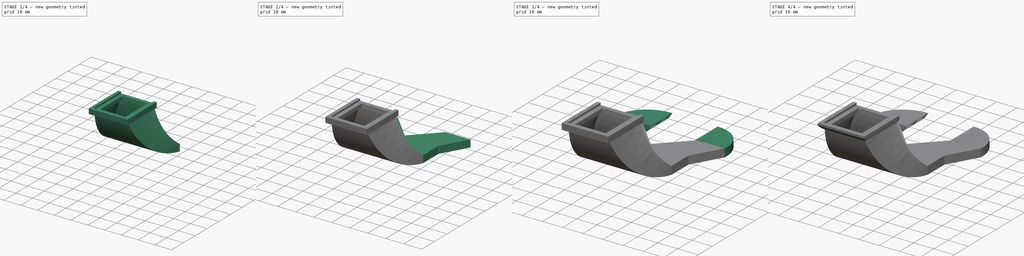
[diagram: build sequence overview — one tinted view per stage of 4, left to right]
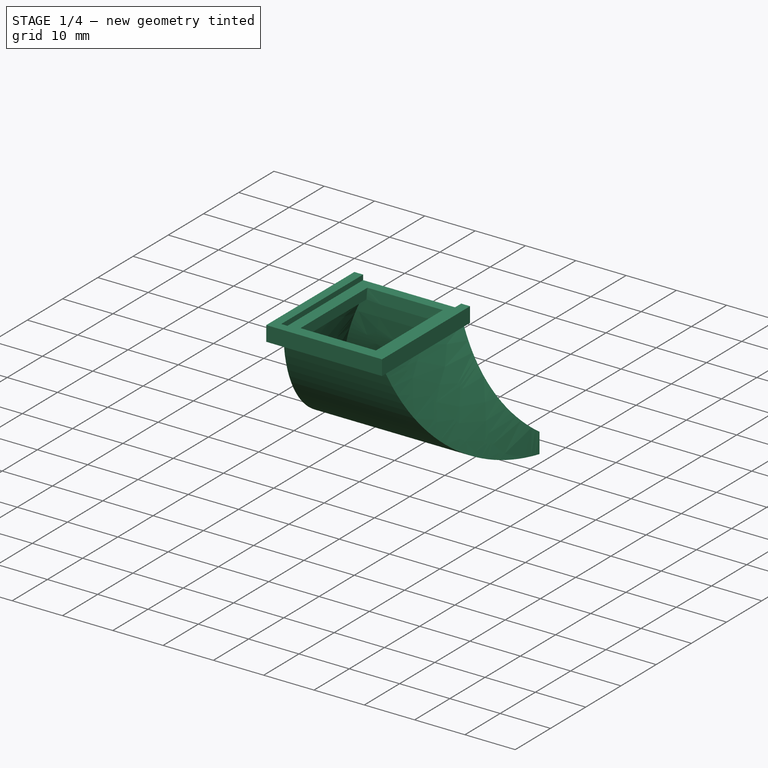
[diagram: stage 1 of 4 — iso view after this stage's code; geometry added in this stage tinted green]
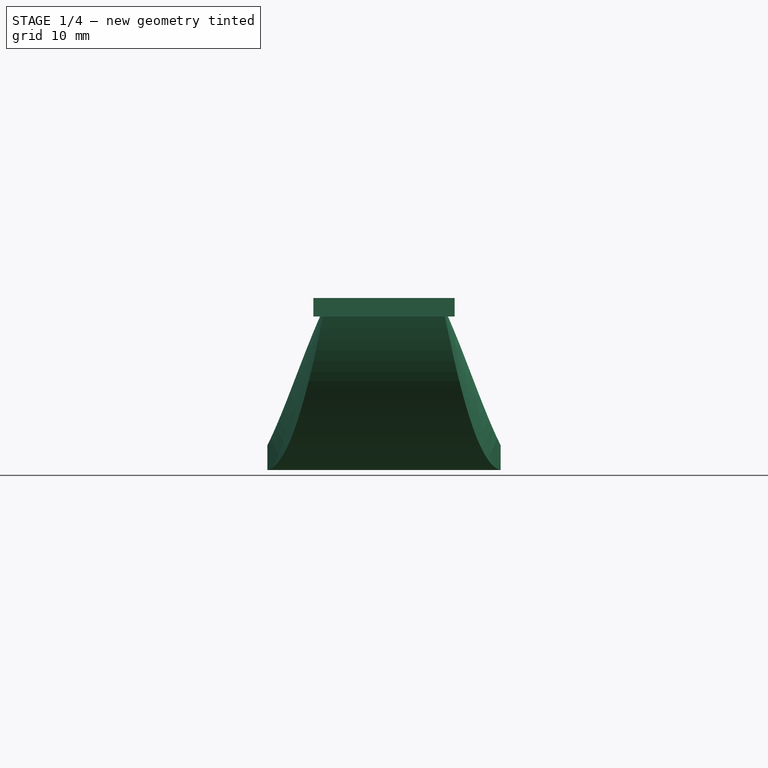
[diagram: stage 1 of 4 — front view after this stage's code; geometry added in this stage tinted green]
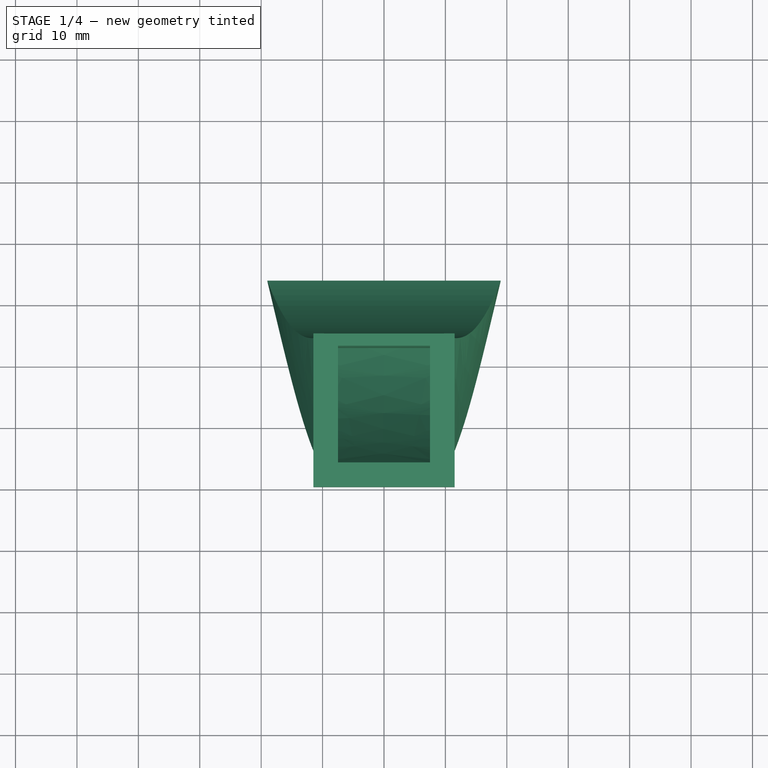
[diagram: stage 1 of 4 — top view after this stage's code; geometry added in this stage tinted green]
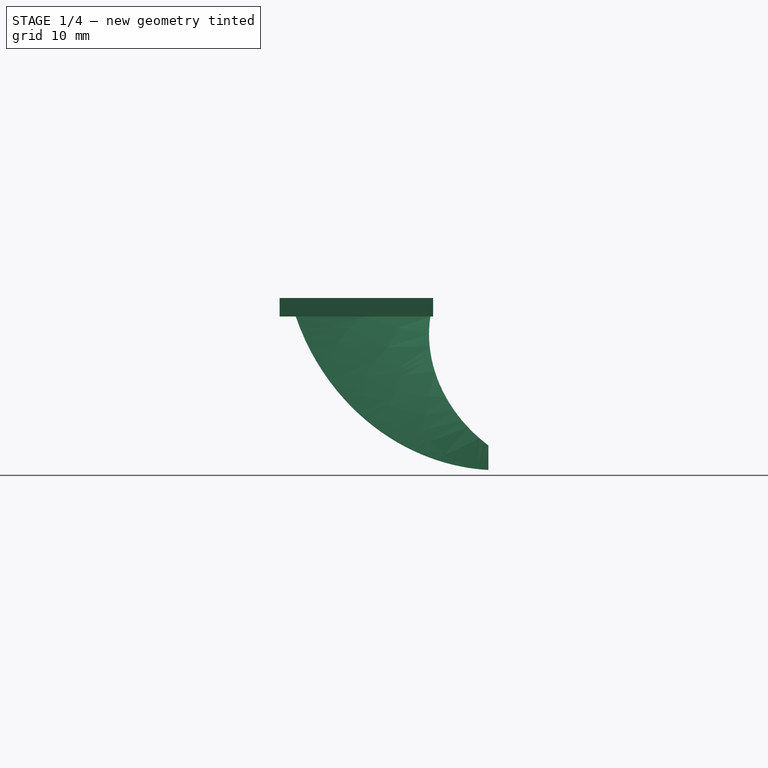
[diagram: stage 1 of 4 — right view after this stage's code; geometry added in this stage tinted green]
FCSTD DOCUMENT  (FreeCAD 0.18R15441 (Git))
Label: BackTurbinePipe_TwoSides
License: All rights reserved
LicenseURL: http://en.wikipedia.org/wiki/All_rights_reserved
objects: Sketcher::SketchObject×19, PartDesign::Plane×8, PartDesign::AdditivePipe×6, PartDesign::Pad×2, PartDesign::Chamfer×2, PartDesign::Pocket×1, PartDesign::Body×1, Part::FeaturePython×1, App::Part×1
note: 49 computed .brp shape members not serialized (recipe doc carries the construction recipe); baked Part::Feature solids carry a one-line shape summary decoded from their .brp

FEATURE [Sketcher::SketchObject] Sketch  label="CasingBaseSketch"
  MapMode = 5
  Support = -> [XY_Plane001]
  sketch-geometry (8):
    g0: LineSegment StartX=-11.5 StartY=-15 StartZ=0 EndX=11.5 EndY=-15 EndZ=0
    g1: LineSegment StartX=11.5 StartY=-15 StartZ=0 EndX=11.5 EndY=-40 EndZ=0
    g2: LineSegment StartX=11.5 StartY=-40 StartZ=0 EndX=-11.5 EndY=-40 EndZ=0
    g3: LineSegment StartX=-11.5 StartY=-40 StartZ=0 EndX=-11.5 EndY=-15 EndZ=0
    g4: LineSegment StartX=-7.5 StartY=-17 StartZ=0 EndX=7.5 EndY=-17 EndZ=0
    g5: LineSegment StartX=7.5 StartY=-17 StartZ=0 EndX=7.5 EndY=-36 EndZ=0
    g6: LineSegment StartX=7.5 StartY=-36 StartZ=0 EndX=-7.5 EndY=-36 EndZ=0
    g7: LineSegment StartX=-7.5 StartY=-36 StartZ=0 EndX=-7.5 EndY=-17 EndZ=0
  constraints (23):
    c: Coincident(g0,g1)
    c: Coincident(g1,g2)
    c: Coincident(g2,g3)
    c: Coincident(g3,g0)
    c: Horizontal(g2)
    c: Vertical(g1)
    c: Vertical(g3)
    c: Coincident(g4,g5)
    c: Coincident(g5,g6)
    c: Coincident(g6,g7)
    c: Coincident(g7,g4)
    c: Horizontal(g4)
    c: Horizontal(g6)
    c: Vertical(g5)
    c: Vertical(g7)
    c: Distance(g6) = 15
    c: Distance(g7) = 19
    c: Distance(g4,g3) = 4
    c: Distance(g4,g1) = 4
    c: Distance(g6,g2) = 4
    c: Distance(g4,g0) = 2
    c: DistanceY(g-1,g2) = -40
    c: Symmetric(g0,g0,g-2)
FEATURE [PartDesign::Pad] Pad  label="CasingBasePad"
  Length = 2
  Length2 = 100
  Profile = -> Sketch
  Reversed = true
  Type = 0
FEATURE [Sketcher::SketchObject] Sketch001  label="CasingInterfaceSketch"
  ExternalGeometry = -> [Sketch]
  MapMode = 5
  Support = -> [XY_Plane001]
  sketch-geometry (9):
    g0: LineSegment StartX=-11.5 StartY=-40 StartZ=0 EndX=11.5 EndY=-40 EndZ=0
    g1: LineSegment StartX=-11.5 StartY=-40 StartZ=0 EndX=-11.5 EndY=-15 EndZ=0
    g2: LineSegment StartX=11.5 StartY=-40 StartZ=0 EndX=11.5 EndY=-15 EndZ=0
    g3: LineSegment StartX=-11.5 StartY=-15 StartZ=0 EndX=-9.75 EndY=-15 EndZ=0
    g4: LineSegment StartX=-9.75 StartY=-15 StartZ=0 EndX=-9.75 EndY=-38.25 EndZ=0
    g5: LineSegment StartX=-9.75 StartY=-38.25 StartZ=0 EndX=9.75 EndY=-38.25 EndZ=0
    g6: LineSegment StartX=9.75 StartY=-38.25 StartZ=0 EndX=9.75 EndY=-15 EndZ=0
    g7: LineSegment StartX=9.75 StartY=-15 StartZ=0 EndX=11.5 EndY=-15 EndZ=0
    g8: LineSegment [constr] StartX=-9.75 StartY=-38.25 StartZ=0 EndX=-9.75 EndY=-40 EndZ=0
  constraints (25):
    c: Coincident(g0,g-3)
    c: Coincident(g0,g-3)
    c: Coincident(g1,g0)
    c: Vertical(g1)
    c: Coincident(g2,g0)
    c: Vertical(g2)
    c: Coincident(g3,g1)
    c: Coincident(g4,g3)
    c: Vertical(g4)
    c: Coincident(g5,g4)
    c: Horizontal(g5)
    c: Coincident(g6,g5)
    c: Vertical(g6)
    c: Coincident(g7,g6)
    c: Coincident(g7,g2)
    c: Horizontal(g7)
    c: Equal(g1,g2)
    c: Horizontal(g3)
    c: Coincident(g8,g4)
    c: PointOnObject(g8,g0)
    c: Vertical(g8)
    c: Equal(g3,g7)
    c: Equal(g7,g8)
    c: Distance(g3) = 1.75
    c: Distance(g1) = 25
FEATURE [PartDesign::Pad] Pad001  label="CasingInterfacePad"
  BaseFeature = -> Pad
  Length = 1
  Length2 = 100
  Profile = -> Sketch001
  Type = 0
FEATURE [Sketcher::SketchObject] Sketch003  label="AirPipeSection1StartSketch"
  ExternalGeometry = -> [Sketch]
  MapMode = 5
  Support = -> [XY_Plane001]
  sketch-geometry (12):
    g0: LineSegment StartX=-7.5 StartY=-36 StartZ=0 EndX=-7.5 EndY=-17 EndZ=0
    g1: LineSegment StartX=-7.5 StartY=-17 StartZ=0 EndX=7.5 EndY=-17 EndZ=0
    g2: LineSegment StartX=7.5 StartY=-17 StartZ=0 EndX=7.5 EndY=-36 EndZ=0
    g3: LineSegment StartX=7.5 StartY=-36 StartZ=0 EndX=-7.5 EndY=-36 EndZ=0
    g4: LineSegment StartX=-9.5 StartY=-15 StartZ=0 EndX=-9.5 EndY=-38 EndZ=0
    g5: LineSegment StartX=-9.5 StartY=-38 StartZ=0 EndX=9.5 EndY=-38 EndZ=0
    g6: LineSegment StartX=9.5 StartY=-38 StartZ=0 EndX=9.5 EndY=-15 EndZ=0
    g7: LineSegment StartX=9.5 StartY=-15 StartZ=0 EndX=-9.5 EndY=-15 EndZ=0
    g8: LineSegment [constr] StartX=-7.5 StartY=-17 StartZ=0 EndX=-7.5 EndY=-15 EndZ=0
    g9: LineSegment [constr] StartX=-7.5 StartY=-17 StartZ=0 EndX=-9.5 EndY=-17 EndZ=0
    g10: LineSegment [constr] StartX=-7.5 StartY=-36 StartZ=0 EndX=-7.5 EndY=-38 EndZ=0
    g11: LineSegment [constr] StartX=7.5 StartY=-36 StartZ=0 EndX=9.5 EndY=-36 EndZ=0
  constraints (32):
    c: Coincident(g0,g-5)
    c: Coincident(g0,g-4)
    c: Coincident(g1,g0)
    c: Coincident(g1,g-6)
    c: Coincident(g2,g1)
    c: Coincident(g2,g-6)
    c: Coincident(g3,g2)
    c: Coincident(g3,g0)
    c: Vertical(g4)
    c: Coincident(g5,g4)
    c: Horizontal(g5)
    c: Coincident(g6,g5)
    c: Vertical(g6)
    c: Coincident(g7,g6)
    c: Coincident(g7,g4)
    c: Horizontal(g7)
    c: Coincident(g8,g0)
    c: PointOnObject(g8,g7)
    c: Vertical(g8)
    c: Coincident(g9,g0)
    c: PointOnObject(g9,g4)
    c: Coincident(g10,g0)
    c: PointOnObject(g10,g5)
    c: Vertical(g10)
    c: Equal(g10,g9)
    c: Equal(g9,g8)
    c: Distance(g8) = 2
    c: Coincident(g11,g2)
    c: PointOnObject(g11,g6)
    c: Horizontal(g11)
    c: Equal(g11,g10)
    c: Horizontal(g9)
FEATURE [Sketcher::SketchObject] Sketch004  label="AirPipePath1-2Sketch"
  ExternalGeometry = -> [Sketch003]
  MapMode = 5
  Placement = pos=(0,0,0) rot=(0.57735,0.57735,0.57735;2.0944rad)
  Support = -> [YZ_Plane001]
  sketch-geometry (5):
    g0: LineSegment [constr] StartX=-36 StartY=-4.9116e-12 StartZ=0 EndX=-26.5 EndY=-3.8352e-12 EndZ=0
    g1: LineSegment [constr] StartX=-17 StartY=-2.7663e-12 StartZ=0 EndX=-26.5 EndY=-3.8352e-12 EndZ=0
    g2: LineSegment [constr] StartX=-6 StartY=0 StartZ=0 EndX=-6 EndY=-25 EndZ=0
    g3: ArcOfCircle CenterX=3.29223 CenterY=3.52463 CenterZ=0 NormalX=0 NormalY=0 NormalZ=1 AngleXU=0 Radius=30 StartAngle=3.25935 EndAngle=4.39747
    g4: LineSegment StartX=-6 StartY=-25 StartZ=0 EndX=6 EndY=-25 EndZ=0
  constraints (15):
    c: Coincident(g0,g-3)
    c: Coincident(g1,g-4)
    c: Coincident(g1,g0)
    c: Equal(g1,g0)
    c: Parallel(g1,g0)
    c: PointOnObject(g2,g-1)
    c: Vertical(g2)
    c: Distance(g1,g2) = 11
    c: Distance(g2) = 25
    c: Coincident(g3,g0)
    c: Coincident(g3,g2)
    c: Radius(g3) = 30
    c: Coincident(g4,g3)
    c: Horizontal(g4)
    c: Distance(g4) = 12
FEATURE [PartDesign::Plane] DatumPlane  label="AirPipeSection1Plane"
  Length = 62.9398
  MapMode = 7
  Placement = pos=(2.146e-12,-6,-25) rot=(1,0,0;1.5708rad)
  ResizeMode = 0
  Support = -> [Sketch004]
  Width = 45.9398
FEATURE [Sketcher::SketchObject] Sketch005  label="AirPipeSection1EndSketch"
  MapMode = 5
  Placement = pos=(2.146e-12,-6,-25) rot=(1,0,0;1.5708rad)
  Support = -> [DatumPlane]
  sketch-geometry (12):
    g0: LineSegment StartX=-18.2 StartY=1.6 StartZ=0 EndX=18.2 EndY=1.6 EndZ=0
    g1: LineSegment StartX=18.2 StartY=1.6 StartZ=0 EndX=18.2 EndY=-1.6 EndZ=0
    g2: LineSegment StartX=18.2 StartY=-1.6 StartZ=0 EndX=-18.2 EndY=-1.6 EndZ=0
    g3: LineSegment StartX=-18.2 StartY=-1.6 StartZ=0 EndX=-18.2 EndY=1.6 EndZ=0
    g4: LineSegment StartX=-19 StartY=2 StartZ=0 EndX=19 EndY=2 EndZ=0
    g5: LineSegment StartX=19 StartY=2 StartZ=0 EndX=19 EndY=-2 EndZ=0
    g6: LineSegment StartX=19 StartY=-2 StartZ=0 EndX=-19 EndY=-2 EndZ=0
    g7: LineSegment StartX=-19 StartY=-2 StartZ=0 EndX=-19 EndY=2 EndZ=0
    g8: LineSegment [constr] StartX=-18.2 StartY=-1.6 StartZ=0 EndX=-18.2 EndY=-2 EndZ=0
    g9: LineSegment [constr] StartX=-18.2 StartY=-1.6 StartZ=0 EndX=-19 EndY=-1.6 EndZ=0
    g10: LineSegment [constr] StartX=18.2 StartY=1.6 StartZ=0 EndX=18.2 EndY=2 EndZ=0
    g11: LineSegment [constr] StartX=18.2 StartY=-1.6 StartZ=0 EndX=19 EndY=-1.6 EndZ=0
  constraints (35):
    c: Coincident(g0,g1)
    c: Coincident(g1,g2)
    c: Coincident(g2,g3)
    c: Coincident(g3,g0)
    c: Horizontal(g0)
    c: Vertical(g1)
    c: Coincident(g4,g5)
    c: Coincident(g5,g6)
    c: Coincident(g6,g7)
    c: Coincident(g7,g4)
    c: Horizontal(g4)
    c: Horizontal(g6)
    c: Vertical(g5)
    c: Vertical(g7)
    c: Coincident(g8,g2)
    c: PointOnObject(g8,g6)
    c: Vertical(g8)
    c: Coincident(g9,g2)
    c: PointOnObject(g9,g7)
    c: Horizontal(g9)
    c: Coincident(g10,g0)
    c: PointOnObject(g10,g4)
    c: Vertical(g10)
    c: Symmetric(g2,g0,g-1)
    c: Distance(g3) = 3.2
    c: Coincident(g11,g1)
    c: PointOnObject(g11,g5)
    c: Horizontal(g11)
    c: Distance(g9) = 0.8
    c: Equal(g11,g9)
    c: Equal(g8,g10)
    c: Horizontal(g2)
    c: DistanceX(g-2,g4) = 19
    c: DistanceX(g-2,g4) = -19
    c: Distance(g7) = 4
FEATURE [PartDesign::AdditivePipe] AdditivePipe  label="AirPipeSection1"
  AuxilleryCurvelinear = true
  AuxillerySpineTangent = false
  BaseFeature = -> Pad001
  Binormal = (0,0,0)
  Mode = 0
  Profile = -> Sketch003
  Sections = -> [Sketch005]
  Spine = -> Sketch004 [Edge1]
  SpineTangent = false
  Transformation = 1
  Transition = 0
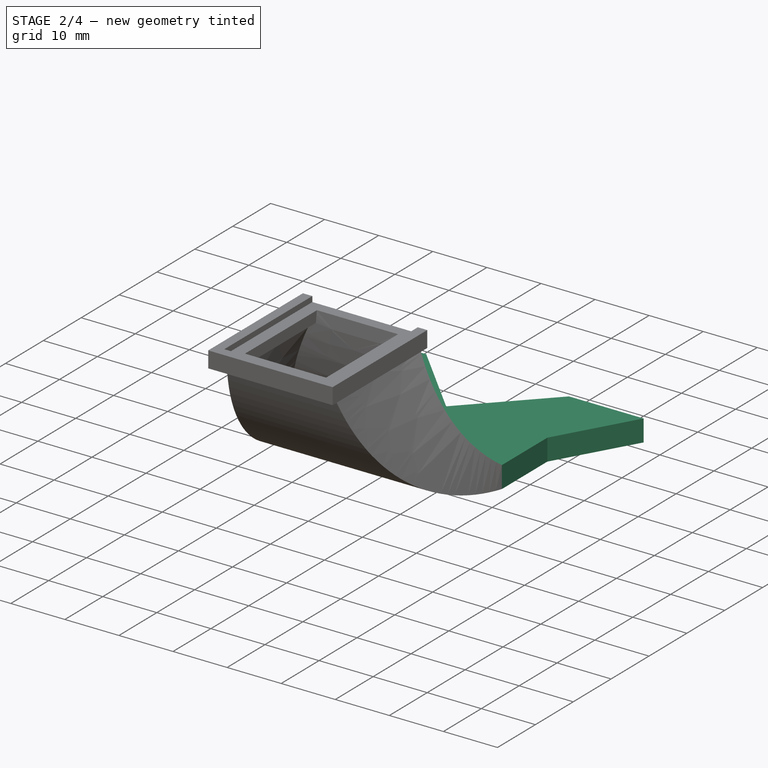
[diagram: stage 2 of 4 — iso view after this stage's code; geometry added in this stage tinted green]
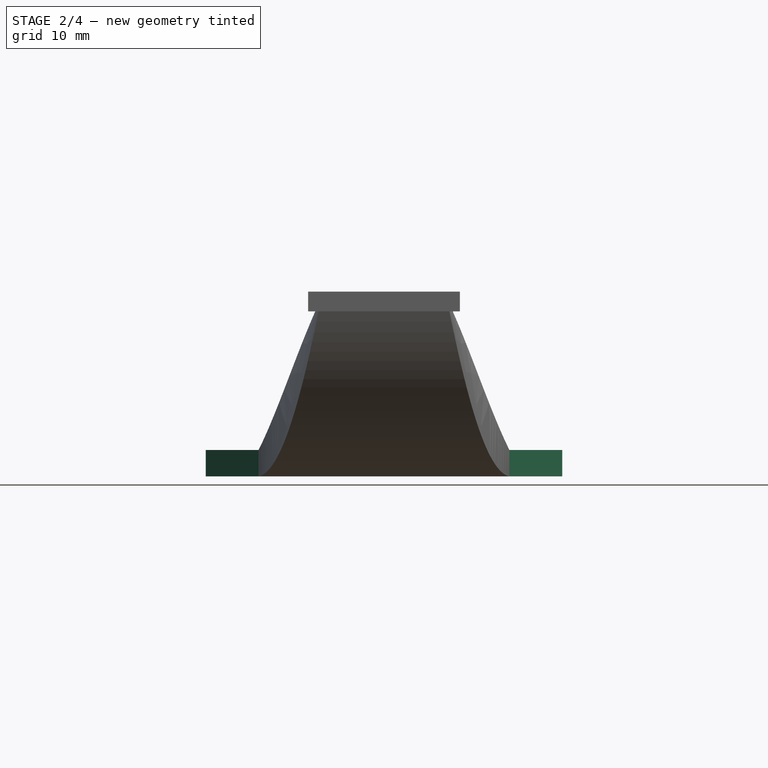
[diagram: stage 2 of 4 — front view after this stage's code; geometry added in this stage tinted green]
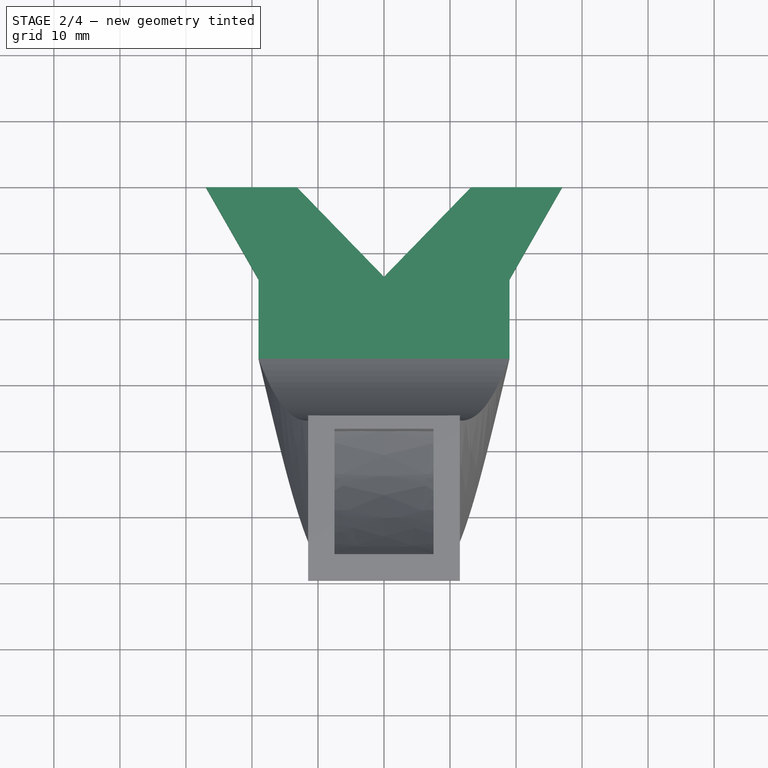
[diagram: stage 2 of 4 — top view after this stage's code; geometry added in this stage tinted green]
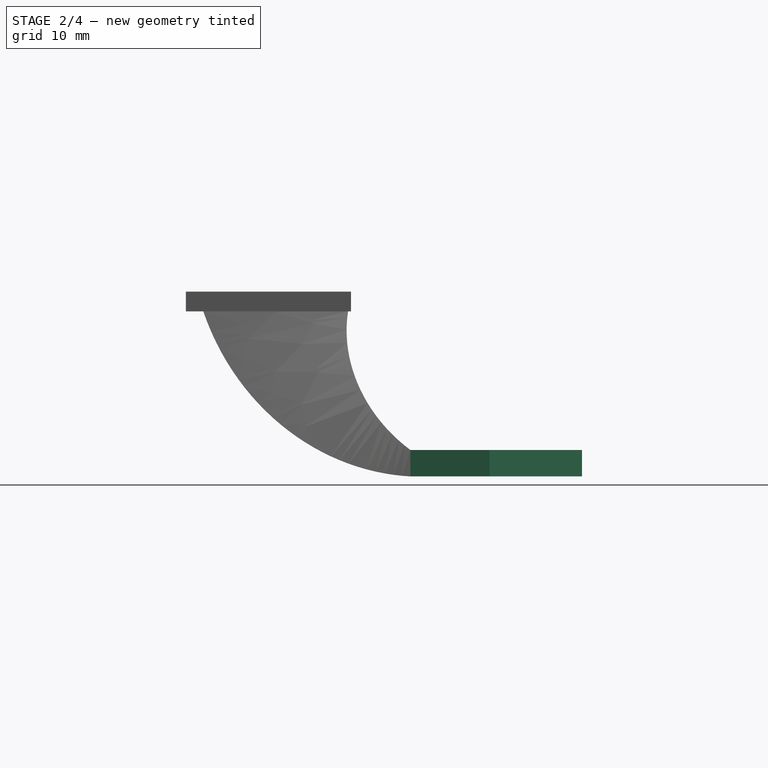
[diagram: stage 2 of 4 — right view after this stage's code; geometry added in this stage tinted green]
FEATURE [PartDesign::Plane] DatumPlane001  label="AirPipeSection2Plane"
  Length = 62.9398
  MapMode = 7
  Placement = pos=(3.4995e-12,6,-25) rot=(1,0,0;1.5708rad)
  ResizeMode = 0
  Support = -> [Sketch004]
  Width = 45.9398
FEATURE [Sketcher::SketchObject] Sketch006  label="AirPipeSection2StartSketch"
  MapMode = 5
  Placement = pos=(2.146e-12,-6,-25) rot=(1,0,0;1.5708rad)
  Support = -> [DatumPlane]
  sketch-geometry (25):
    g0: LineSegment StartX=-19 StartY=2 StartZ=0 EndX=19 EndY=2 EndZ=0
    g1: LineSegment StartX=19 StartY=2 StartZ=0 EndX=19 EndY=-2 EndZ=0
    g2: LineSegment StartX=19 StartY=-2 StartZ=0 EndX=-19 EndY=-2 EndZ=0
    g3: LineSegment StartX=-19 StartY=-2 StartZ=0 EndX=-19 EndY=2 EndZ=0
    g4: LineSegment StartX=-18.2 StartY=1.6 StartZ=0 EndX=-9.7 EndY=1.6 EndZ=0
    g5: LineSegment StartX=-9.7 StartY=1.6 StartZ=0 EndX=-9.7 EndY=-1.6 EndZ=0
    g6: LineSegment StartX=-9.7 StartY=-1.6 StartZ=0 EndX=-18.2 EndY=-1.6 EndZ=0
    g7: LineSegment StartX=-18.2 StartY=-1.6 StartZ=0 EndX=-18.2 EndY=1.6 EndZ=0
    g8: LineSegment StartX=-8.9 StartY=1.6 StartZ=0 EndX=-0.4 EndY=1.6 EndZ=0
    g9: LineSegment StartX=-0.4 StartY=1.6 StartZ=0 EndX=-0.4 EndY=-1.6 EndZ=0
    g10: LineSegment StartX=-0.4 StartY=-1.6 StartZ=0 EndX=-8.9 EndY=-1.6 EndZ=0
    g11: LineSegment StartX=-8.9 StartY=-1.6 StartZ=0 EndX=-8.9 EndY=1.6 EndZ=0
    g12: LineSegment StartX=0.4 StartY=1.6 StartZ=0 EndX=8.9 EndY=1.6 EndZ=0
    g13: LineSegment StartX=8.9 StartY=1.6 StartZ=0 EndX=8.9 EndY=-1.6 EndZ=0
    g14: LineSegment StartX=8.9 StartY=-1.6 StartZ=0 EndX=0.4 EndY=-1.6 EndZ=0
    g15: LineSegment StartX=0.4 StartY=-1.6 StartZ=0 EndX=0.4 EndY=1.6 EndZ=0
    g16: LineSegment StartX=9.7 StartY=1.6 StartZ=0 EndX=18.2 EndY=1.6 EndZ=0
    g17: LineSegment StartX=18.2 StartY=1.6 StartZ=0 EndX=18.2 EndY=-1.6 EndZ=0
    g18: LineSegment StartX=18.2 StartY=-1.6 StartZ=0 EndX=9.7 EndY=-1.6 EndZ=0
    g19: LineSegment StartX=9.7 StartY=-1.6 StartZ=0 EndX=9.7 EndY=1.6 EndZ=0
    g20: LineSegment [constr] StartX=-9.7 StartY=1.6 StartZ=0 EndX=-8.9 EndY=1.6 EndZ=0
    g21: LineSegment [constr] StartX=-0.4 StartY=1.6 StartZ=0 EndX=0.4 EndY=1.6 EndZ=0
    g22: LineSegment [constr] StartX=8.9 StartY=1.6 StartZ=0 EndX=9.7 EndY=1.6 EndZ=0
    g23: LineSegment [constr] StartX=-18.2 StartY=1.6 StartZ=0 EndX=-19 EndY=1.6 EndZ=0
    g24: LineSegment [constr] StartX=18.2 StartY=1.6 StartZ=0 EndX=19 EndY=1.6 EndZ=0
  constraints (70):
    c: Coincident(g0,g1)
    c: Coincident(g1,g2)
    c: Coincident(g2,g3)
    c: Coincident(g3,g0)
    c: Horizontal(g0)
    c: Horizontal(g2)
    c: Vertical(g1)
    c: Symmetric(g0,g2,g-1)
    c: Distance(g3) = 4
    c: DistanceX(g-2,g0) = -19
    c: DistanceX(g-2,g0) = 19
    c: Coincident(g4,g5)
    c: Coincident(g5,g6)
    c: Coincident(g6,g7)
    c: Coincident(g7,g4)
    c: Horizontal(g4)
    c: Horizontal(g6)
    c: Vertical(g5)
    c: Coincident(g8,g9)
    c: Coincident(g9,g10)
    c: Coincident(g10,g11)
    c: Coincident(g11,g8)
    c: Horizontal(g8)
    c: Horizontal(g10)
    c: Vertical(g9)
    c: Vertical(g11)
    c: Coincident(g12,g13)
    c: Coincident(g13,g14)
    c: Coincident(g14,g15)
    c: Coincident(g15,g12)
    c: Horizontal(g12)
    c: Horizontal(g14)
    c: Vertical(g13)
    c: Vertical(g15)
    c: Coincident(g16,g17)
    c: Coincident(g17,g18)
    c: Coincident(g18,g19)
    c: Coincident(g19,g16)
    c: Horizontal(g16)
    c: Horizontal(g18)
    c: Vertical(g17)
    c: Vertical(g19)
    c: Equal(g6,g10)
    c: Equal(g10,g14)
    c: Equal(g14,g18)
    c: Equal(g7,g11)
    c: Equal(g11,g15)
    c: Equal(g15,g19)
    c: Symmetric(g4,g6,g-1)
    c: Coincident(g20,g4)
    c: Coincident(g20,g8)
    c: Coincident(g21,g8)
    c: Coincident(g21,g12)
    c: Horizontal(g21)
    c: Coincident(g22,g12)
    c: Coincident(g22,g16)
    c: Horizontal(g22)
    c: Horizontal(g20)
    c: Equal(g20,g21)
    c: Equal(g21,g22)
    c: Distance(g4,g16) = 36.4
    c: Coincident(g23,g4)
    c: PointOnObject(g23,g3)
    c: Horizontal(g23)
    c: Coincident(g24,g16)
    c: PointOnObject(g24,g1)
    c: Horizontal(g24)
    c: Equal(g24,g23)
    c: Distance(g7) = 3.2
    c: Distance(g20) = 0.8
FEATURE [Sketcher::SketchObject] Sketch007  label="AirPipeSection2EndSketch"
  MapMode = 5
  Placement = pos=(3.4995e-12,6,-25) rot=(1,0,0;1.5708rad)
  Support = -> [DatumPlane001]
  sketch-geometry (25):
    g0: LineSegment StartX=-19 StartY=2 StartZ=0 EndX=19 EndY=2 EndZ=0
    g1: LineSegment StartX=19 StartY=2 StartZ=0 EndX=19 EndY=-2 EndZ=0
    g2: LineSegment StartX=19 StartY=-2 StartZ=0 EndX=-19 EndY=-2 EndZ=0
    g3: LineSegment StartX=-19 StartY=-2 StartZ=0 EndX=-19 EndY=2 EndZ=0
    g4: LineSegment StartX=-18.2 StartY=1.6 StartZ=0 EndX=-9.7 EndY=1.6 EndZ=0
    g5: LineSegment StartX=-9.7 StartY=1.6 StartZ=0 EndX=-9.7 EndY=-1.6 EndZ=0
    g6: LineSegment StartX=-9.7 StartY=-1.6 StartZ=0 EndX=-18.2 EndY=-1.6 EndZ=0
    g7: LineSegment StartX=-18.2 StartY=-1.6 StartZ=0 EndX=-18.2 EndY=1.6 EndZ=0
    g8: LineSegment StartX=-8.9 StartY=1.6 StartZ=0 EndX=-0.4 EndY=1.6 EndZ=0
    g9: LineSegment StartX=-0.4 StartY=1.6 StartZ=0 EndX=-0.4 EndY=-1.6 EndZ=0
    g10: LineSegment StartX=-0.4 StartY=-1.6 StartZ=0 EndX=-8.9 EndY=-1.6 EndZ=0
    g11: LineSegment StartX=-8.9 StartY=-1.6 StartZ=0 EndX=-8.9 EndY=1.6 EndZ=0
    g12: LineSegment StartX=0.4 StartY=1.6 StartZ=0 EndX=8.9 EndY=1.6 EndZ=0
    g13: LineSegment StartX=8.9 StartY=1.6 StartZ=0 EndX=8.9 EndY=-1.6 EndZ=0
    g14: LineSegment StartX=8.9 StartY=-1.6 StartZ=0 EndX=0.4 EndY=-1.6 EndZ=0
    g15: LineSegment StartX=0.4 StartY=-1.6 StartZ=0 EndX=0.4 EndY=1.6 EndZ=0
    g16: LineSegment StartX=9.7 StartY=1.6 StartZ=0 EndX=18.2 EndY=1.6 EndZ=0
    g17: LineSegment StartX=18.2 StartY=1.6 StartZ=0 EndX=18.2 EndY=-1.6 EndZ=0
    g18: LineSegment StartX=18.2 StartY=-1.6 StartZ=0 EndX=9.7 EndY=-1.6 EndZ=0
    g19: LineSegment StartX=9.7 StartY=-1.6 StartZ=0 EndX=9.7 EndY=1.6 EndZ=0
    g20: LineSegment [constr] StartX=-9.7 StartY=1.6 StartZ=0 EndX=-8.9 EndY=1.6 EndZ=0
    g21: LineSegment [constr] StartX=-0.4 StartY=1.6 StartZ=0 EndX=0.4 EndY=1.6 EndZ=0
    g22: LineSegment [constr] StartX=8.9 StartY=1.6 StartZ=0 EndX=9.7 EndY=1.6 EndZ=0
    g23: LineSegment [constr] StartX=-18.2 StartY=1.6 StartZ=0 EndX=-19 EndY=1.6 EndZ=0
    g24: LineSegment [constr] StartX=18.2 StartY=1.6 StartZ=0 EndX=19 EndY=1.6 EndZ=0
  constraints (70):
    c: Coincident(g0,g1)
    c: Coincident(g1,g2)
    c: Coincident(g2,g3)
    c: Coincident(g3,g0)
    c: Horizontal(g0)
    c: Horizontal(g2)
    c: Vertical(g1)
    c: Symmetric(g0,g2,g-1)
    c: Distance(g3) = 4
    c: DistanceX(g-2,g0) = -19
    c: DistanceX(g-2,g0) = 19
    c: Coincident(g4,g5)
    c: Coincident(g5,g6)
    c: Coincident(g6,g7)
    c: Coincident(g7,g4)
    c: Horizontal(g4)
    c: Horizontal(g6)
    c: Vertical(g5)
    c: Coincident(g8,g9)
    c: Coincident(g9,g10)
    c: Coincident(g10,g11)
    c: Coincident(g11,g8)
    c: Horizontal(g8)
    c: Horizontal(g10)
    c: Vertical(g9)
    c: Vertical(g11)
    c: Coincident(g12,g13)
    c: Coincident(g13,g14)
    c: Coincident(g14,g15)
    c: Coincident(g15,g12)
    c: Horizontal(g12)
    c: Horizontal(g14)
    c: Vertical(g13)
    c: Vertical(g15)
    c: Coincident(g16,g17)
    c: Coincident(g17,g18)
    c: Coincident(g18,g19)
    c: Coincident(g19,g16)
    c: Horizontal(g16)
    c: Horizontal(g18)
    c: Vertical(g17)
    c: Vertical(g19)
    c: Equal(g7,g11)
    c: Equal(g11,g15)
    c: Equal(g15,g19)
    c: Symmetric(g4,g6,g-1)
    c: Coincident(g20,g4)
    c: Coincident(g20,g8)
    c: Coincident(g21,g8)
    c: Coincident(g21,g12)
    c: Horizontal(g21)
    c: Coincident(g22,g12)
    c: Coincident(g22,g16)
    c: Horizontal(g22)
    c: Horizontal(g20)
    c: Distance(g4,g16) = 36.4
    c: Coincident(g23,g4)
    c: PointOnObject(g23,g3)
    c: Horizontal(g23)
    c: Coincident(g24,g16)
    c: PointOnObject(g24,g1)
    c: Horizontal(g24)
    c: Equal(g24,g23)
    c: Distance(g7) = 3.2
    c: Distance(g20) = 0.8
    c: Distance(g21) = 0.8
    c: Equal(g6,g18)
    c: Equal(g10,g14)
    c: Equal(g20,g22)
    c: Distance(g4) = 8.5
FEATURE [PartDesign::AdditivePipe] AdditivePipe001  label="AirPipeSection2"
  AuxilleryCurvelinear = true
  AuxillerySpineTangent = false
  BaseFeature = -> AdditivePipe
  Binormal = (0,0,0)
  Mode = 0
  Profile = -> Sketch006
  Sections = -> [Sketch007]
  Spine = -> Sketch004 [Edge2]
  SpineTangent = false
  Transformation = 1
  Transition = 0
FEATURE [PartDesign::Plane] DatumPlane002  label="AirPipeSection3-4_PathPlane"
  AttachmentOffset = pos=(0,0,-25) rot=(0,0,1;0rad)
  Length = 66.9633
  MapMode = 5
  Placement = pos=(0,0,-25) rot=(0,0,1;0rad)
  ResizeMode = 0
  Support = -> [XY_Plane001]
  Width = 90.7633
FEATURE [Sketcher::SketchObject] Sketch008  label="AirPipePath3Sketch"
  ExternalGeometry = -> [Sketch007]
  MapMode = 5
  Placement = pos=(0,0,-25) rot=(0,0,1;0rad)
  Support = -> [DatumPlane002]
  sketch-geometry (2):
    g0: LineSegment StartX=19 StartY=6 StartZ=0 EndX=27 EndY=20 EndZ=0
    g1: LineSegment StartX=-19 StartY=6 StartZ=0 EndX=-27 EndY=20 EndZ=0
  constraints (6):
    c: Coincident(g0,g-3)
    c: Coincident(g1,g-4)
    c: DistanceY(g0,g0) = 14
    c: DistanceY(g1,g1) = 14
    c: DistanceX(g1,g1) = 8
    c: DistanceX(g0,g0) = 8
FEATURE [Sketcher::SketchObject] Sketch009  label="AirPipeSection3RStartSketch"
  ExternalGeometry = -> [Sketch008]
  MapMode = 5
  Placement = pos=(3.4995e-12,6,-25) rot=(1,0,0;1.5708rad)
  Support = -> [DatumPlane001]
  sketch-geometry (15):
    g0: LineSegment StartX=-0.4 StartY=2 StartZ=0 EndX=19 EndY=2 EndZ=0
    g1: LineSegment StartX=19 StartY=2 StartZ=0 EndX=19 EndY=-2 EndZ=0
    g2: LineSegment StartX=19 StartY=-2 StartZ=0 EndX=-0.4 EndY=-2 EndZ=0
    g3: LineSegment StartX=-0.4 StartY=-2 StartZ=0 EndX=-0.4 EndY=2 EndZ=0
    g4: LineSegment StartX=18.2 StartY=1.6 StartZ=0 EndX=9.7 EndY=1.6 EndZ=0
    g5: LineSegment StartX=9.7 StartY=1.6 StartZ=0 EndX=9.7 EndY=-1.6 EndZ=0
    g6: LineSegment StartX=9.7 StartY=-1.6 StartZ=0 EndX=18.2 EndY=-1.6 EndZ=0
    g7: LineSegment StartX=18.2 StartY=-1.6 StartZ=0 EndX=18.2 EndY=1.6 EndZ=0
    g8: LineSegment StartX=0.4 StartY=1.6 StartZ=0 EndX=8.9 EndY=1.6 EndZ=0
    g9: LineSegment StartX=8.9 StartY=1.6 StartZ=0 EndX=8.9 EndY=-1.6 EndZ=0
    g10: LineSegment StartX=8.9 StartY=-1.6 StartZ=0 EndX=0.4 EndY=-1.6 EndZ=0
    g11: LineSegment StartX=0.4 StartY=-1.6 StartZ=0 EndX=0.4 EndY=1.6 EndZ=0
    g12: LineSegment [constr] StartX=8.9 StartY=1.6 StartZ=0 EndX=9.7 EndY=1.6 EndZ=0
    g13: LineSegment [constr] StartX=18.2 StartY=1.6 StartZ=0 EndX=19 EndY=1.6 EndZ=0
    g14: LineSegment [constr] StartX=0.4 StartY=1.6 StartZ=0 EndX=-0.4 EndY=1.6 EndZ=0
  constraints (42):
    c: Coincident(g0,g1)
    c: Coincident(g1,g2)
    c: Coincident(g2,g3)
    c: Coincident(g3,g0)
    c: Horizontal(g0)
    c: Horizontal(g2)
    c: Vertical(g1)
    c: Vertical(g3)
    c: Symmetric(g0,g1,g-3)
    c: Distance(g3) = 4
    c: Coincident(g4,g5)
    c: Coincident(g5,g6)
    c: Coincident(g6,g7)
    c: Coincident(g7,g4)
    c: Horizontal(g4)
    c: Horizontal(g6)
    c: Vertical(g5)
    c: Vertical(g7)
    c: Coincident(g8,g9)
    c: Coincident(g9,g10)
    c: Coincident(g10,g11)
    c: Coincident(g11,g8)
    c: Horizontal(g8)
    c: Horizontal(g10)
    c: Vertical(g9)
    c: Coincident(g12,g8)
    c: Coincident(g12,g4)
    c: Coincident(g13,g4)
    c: PointOnObject(g13,g1)
    c: Horizontal(g13)
    c: Coincident(g14,g8)
    c: PointOnObject(g14,g3)
    c: Horizontal(g14)
    c: Horizontal(g12)
    c: Distance(g13) = 0.8
    c: Distance(g12) = 0.8
    c: Symmetric(g8,g10,g-1)
    c: Equal(g11,g5)
    c: Distance(g10,g2) = 0.4
    c: Distance(g8,g1) = 18.6
    c: Equal(g13,g14)
    c: Distance(g8) = 8.5
FEATURE [Sketcher::SketchObject] Sketch010  label="AirPipeSection3LStartSketch"
  ExternalGeometry = -> [Sketch008]
  MapMode = 5
  Placement = pos=(3.4995e-12,6,-25) rot=(1,0,0;1.5708rad)
  Support = -> [DatumPlane001]
  sketch-geometry (15):
    g0: LineSegment StartX=-19 StartY=2 StartZ=0 EndX=0.4 EndY=2 EndZ=0
    g1: LineSegment StartX=0.4 StartY=2 StartZ=0 EndX=0.4 EndY=-2 EndZ=0
    g2: LineSegment StartX=0.4 StartY=-2 StartZ=0 EndX=-19 EndY=-2 EndZ=0
    g3: LineSegment StartX=-19 StartY=-2 StartZ=0 EndX=-19 EndY=2 EndZ=0
    g4: LineSegment StartX=-0.4 StartY=1.6 StartZ=0 EndX=-8.9 EndY=1.6 EndZ=0
    g5: LineSegment StartX=-8.9 StartY=1.6 StartZ=0 EndX=-8.9 EndY=-1.6 EndZ=0
    g6: LineSegment StartX=-8.9 StartY=-1.6 StartZ=0 EndX=-0.4 EndY=-1.6 EndZ=0
    g7: LineSegment StartX=-0.4 StartY=-1.6 StartZ=0 EndX=-0.4 EndY=1.6 EndZ=0
    g8: LineSegment StartX=-18.2 StartY=1.6 StartZ=0 EndX=-9.7 EndY=1.6 EndZ=0
    g9: LineSegment StartX=-9.7 StartY=1.6 StartZ=0 EndX=-9.7 EndY=-1.6 EndZ=0
    g10: LineSegment StartX=-9.7 StartY=-1.6 StartZ=0 EndX=-18.2 EndY=-1.6 EndZ=0
    g11: LineSegment StartX=-18.2 StartY=-1.6 StartZ=0 EndX=-18.2 EndY=1.6 EndZ=0
    g12: LineSegment [constr] StartX=-9.7 StartY=1.6 StartZ=0 EndX=-8.9 EndY=1.6 EndZ=0
    g13: LineSegment [constr] StartX=-0.4 StartY=1.6 StartZ=0 EndX=0.4 EndY=1.6 EndZ=0
    g14: LineSegment [constr] StartX=-18.2 StartY=1.6 StartZ=0 EndX=-19 EndY=1.6 EndZ=0
  constraints (42):
    c: Coincident(g0,g1)
    c: Coincident(g1,g2)
    c: Coincident(g2,g3)
    c: Coincident(g3,g0)
    c: Horizontal(g0)
    c: Horizontal(g2)
    c: Vertical(g1)
    c: Vertical(g3)
    c: Distance(g3) = 4
    c: Coincident(g4,g5)
    c: Coincident(g5,g6)
    c: Coincident(g6,g7)
    c: Coincident(g7,g4)
    c: Horizontal(g4)
    c: Horizontal(g6)
    c: Vertical(g5)
    c: Vertical(g7)
    c: Coincident(g8,g9)
    c: Coincident(g9,g10)
    c: Coincident(g10,g11)
    c: Coincident(g11,g8)
    c: Horizontal(g8)
    c: Horizontal(g10)
    c: Vertical(g9)
    c: Coincident(g12,g8)
    c: Coincident(g12,g4)
    c: Coincident(g13,g4)
    c: PointOnObject(g13,g1)
    c: Horizontal(g13)
    c: Coincident(g14,g8)
    c: PointOnObject(g14,g3)
    c: Horizontal(g14)
    c: Horizontal(g12)
    c: Distance(g12) = 0.8
    c: Symmetric(g8,g10,g-1)
    c: Equal(g11,g5)
    c: Distance(g10,g2) = 0.4
    c: Distance(g14) = 0.8
    c: Distance(g4,g3) = 18.6
    c: Symmetric(g0,g2,g-3)
    c: Equal(g14,g13)
    c: Distance(g4) = 8.5
FEATURE [PartDesign::Plane] DatumPlane003  label="AirPipeSection3Plane"
  AttachmentOffset = pos=(0,-25,-20) rot=(0,0,1;0rad)
  Length = 62.9398
  MapMode = 5
  Placement = pos=(0,20,-25) rot=(1,0,0;1.5708rad)
  ResizeMode = 0
  Support = -> [XZ_Plane001]
  Width = 45.9398
FEATURE [Sketcher::SketchObject] Sketch011  label="AirPipeSection3REndSketch"
  ExternalGeometry = -> [Sketch008]
  MapMode = 5
  Placement = pos=(0,20,-25) rot=(1,0,0;1.5708rad)
  Support = -> [DatumPlane003]
  sketch-geometry (15):
    g0: LineSegment StartX=13.2 StartY=2 StartZ=0 EndX=27 EndY=2 EndZ=0
    g1: LineSegment StartX=27 StartY=2 StartZ=0 EndX=27 EndY=-2 EndZ=0
    g2: LineSegment StartX=27 StartY=-2 StartZ=0 EndX=13.2 EndY=-2 EndZ=0
    g3: LineSegment StartX=13.2 StartY=-2 StartZ=0 EndX=13.2 EndY=2 EndZ=0
    g4: LineSegment StartX=26.2 StartY=1.6 StartZ=0 EndX=20.5 EndY=1.6 EndZ=0
    g5: LineSegment StartX=20.5 StartY=1.6 StartZ=0 EndX=20.5 EndY=-1.6 EndZ=0
    g6: LineSegment StartX=20.5 StartY=-1.6 StartZ=0 EndX=26.2 EndY=-1.6 EndZ=0
    g7: LineSegment StartX=26.2 StartY=-1.6 StartZ=0 EndX=26.2 EndY=1.6 EndZ=0
    g8: LineSegment StartX=14 StartY=1.6 StartZ=0 EndX=19.7 EndY=1.6 EndZ=0
    g9: LineSegment StartX=19.7 StartY=1.6 StartZ=0 EndX=19.7 EndY=-1.6 EndZ=0
    g10: LineSegment StartX=19.7 StartY=-1.6 StartZ=0 EndX=14 EndY=-1.6 EndZ=0
    g11: LineSegment StartX=14 StartY=-1.6 StartZ=0 EndX=14 EndY=1.6 EndZ=0
    g12: LineSegment [constr] StartX=19.7 StartY=1.6 StartZ=0 EndX=20.5 EndY=1.6 EndZ=0
    g13: LineSegment [constr] StartX=26.2 StartY=1.6 StartZ=0 EndX=27 EndY=1.6 EndZ=0
    g14: LineSegment [constr] StartX=14 StartY=1.6 StartZ=0 EndX=13.2 EndY=1.6 EndZ=0
  constraints (42):
    c: Coincident(g0,g1)
    c: Coincident(g1,g2)
    c: Coincident(g2,g3)
    c: Coincident(g3,g0)
    c: Horizontal(g0)
    c: Horizontal(g2)
    c: Vertical(g3)
    c: Distance(g3) = 4
    c: Coincident(g4,g5)
    c: Coincident(g5,g6)
    c: Coincident(g6,g7)
    c: Coincident(g7,g4)
    c: Horizontal(g4)
    c: Horizontal(g6)
    c: Vertical(g5)
    c: Vertical(g7)
    c: Coincident(g8,g9)
    c: Coincident(g9,g10)
    c: Coincident(g10,g11)
    c: Coincident(g11,g8)
    c: Horizontal(g8)
    c: Horizontal(g10)
    c: Vertical(g9)
    c: Coincident(g12,g8)
    c: Coincident(g12,g4)
    c: Coincident(g13,g4)
    c: PointOnObject(g13,g1)
    c: Horizontal(g13)
    c: Coincident(g14,g8)
    c: PointOnObject(g14,g3)
    c: Horizontal(g14)
    c: Horizontal(g12)
    c: Distance(g13) = 0.8
    c: Distance(g12) = 0.8
    c: Symmetric(g8,g10,g-1)
    c: Equal(g11,g5)
    c: Distance(g10,g2) = 0.4
    c: Distance(g8,g1) = 13
    c: Symmetric(g0,g1,g-1)
    c: PointOnObject(g-3,g1)
    c: Equal(g14,g13)
    c: Equal(g8,g4)
FEATURE [Sketcher::SketchObject] Sketch012  label="AirPipeSection3LEndSketch"
  ExternalGeometry = -> [Sketch008]
  MapMode = 5
  Placement = pos=(0,20,-25) rot=(1,0,0;1.5708rad)
  Support = -> [DatumPlane003]
  sketch-geometry (15):
    g0: LineSegment StartX=-27 StartY=2 StartZ=0 EndX=-13.2 EndY=2 EndZ=0
    g1: LineSegment StartX=-13.2 StartY=2 StartZ=0 EndX=-13.2 EndY=-2 EndZ=0
    g2: LineSegment StartX=-13.2 StartY=-2 StartZ=0 EndX=-27 EndY=-2 EndZ=0
    g3: LineSegment StartX=-27 StartY=-2 StartZ=0 EndX=-27 EndY=2 EndZ=0
    g4: LineSegment StartX=-14 StartY=1.6 StartZ=0 EndX=-19.7 EndY=1.6 EndZ=0
    g5: LineSegment StartX=-19.7 StartY=1.6 StartZ=0 EndX=-19.7 EndY=-1.6 EndZ=0
    g6: LineSegment StartX=-19.7 StartY=-1.6 StartZ=0 EndX=-14 EndY=-1.6 EndZ=0
    g7: LineSegment StartX=-14 StartY=-1.6 StartZ=0 EndX=-14 EndY=1.6 EndZ=0
    g8: LineSegment StartX=-26.2 StartY=1.6 StartZ=0 EndX=-20.5 EndY=1.6 EndZ=0
    g9: LineSegment StartX=-20.5 StartY=1.6 StartZ=0 EndX=-20.5 EndY=-1.6 EndZ=0
    g10: LineSegment StartX=-20.5 StartY=-1.6 StartZ=0 EndX=-26.2 EndY=-1.6 EndZ=0
    g11: LineSegment StartX=-26.2 StartY=-1.6 StartZ=0 EndX=-26.2 EndY=1.6 EndZ=0
    g12: LineSegment [constr] StartX=-20.5 StartY=1.6 StartZ=0 EndX=-19.7 EndY=1.6 EndZ=0
    g13: LineSegment [constr] StartX=-14 StartY=1.6 StartZ=0 EndX=-13.2 EndY=1.6 EndZ=0
    g14: LineSegment [constr] StartX=-26.2 StartY=1.6 StartZ=0 EndX=-27 EndY=1.6 EndZ=0
  constraints (42):
    c: Coincident(g0,g1)
    c: Coincident(g1,g2)
    c: Coincident(g2,g3)
    c: Coincident(g3,g0)
    c: Horizontal(g0)
    c: Horizontal(g2)
    c: Vertical(g3)
    c: Distance(g3) = 4
    c: Coincident(g4,g5)
    c: Coincident(g5,g6)
    c: Coincident(g6,g7)
    c: Coincident(g7,g4)
    c: Horizontal(g4)
    c: Horizontal(g6)
    c: Vertical(g5)
    c: Vertical(g7)
    c: Coincident(g8,g9)
    c: Coincident(g9,g10)
    c: Coincident(g10,g11)
    c: Coincident(g11,g8)
    c: Horizontal(g8)
    c: Horizontal(g10)
    c: Vertical(g9)
    c: Coincident(g12,g8)
    c: Coincident(g12,g4)
    c: Coincident(g13,g4)
    c: PointOnObject(g13,g1)
    c: Horizontal(g13)
    c: Coincident(g14,g8)
    c: PointOnObject(g14,g3)
    c: Horizontal(g14)
    c: Horizontal(g12)
    c: Distance(g12) = 0.8
    c: Symmetric(g8,g10,g-1)
    c: Equal(g11,g5)
    c: Distance(g14) = 0.8
    c: Distance(g4,g3) = 13
    c: Symmetric(g0,g1,g-1)
    c: Distance(g11) = 3.2
    c: PointOnObject(g-3,g3)
    c: Equal(g14,g13)
    c: Equal(g4,g8)
FEATURE [PartDesign::AdditivePipe] AdditivePipe002  label="AirPipeSection3R"
  AuxilleryCurvelinear = true
  AuxillerySpineTangent = false
  BaseFeature = -> AdditivePipe001
  Binormal = (0,0,0)
  Mode = 0
  Profile = -> Sketch009
  Sections = -> [Sketch011]
  Spine = -> Sketch008 [Edge1]
  SpineTangent = false
  Transformation = 1
  Transition = 0
FEATURE [PartDesign::AdditivePipe] AdditivePipe003  label="AirPipeSection3L"
  AuxilleryCurvelinear = true
  AuxillerySpineTangent = false
  BaseFeature = -> AdditivePipe002
  Binormal = (0,0,0)
  Mode = 0
  Profile = -> Sketch010
  Sections = -> [Sketch012]
  Spine = -> Sketch008 [Edge2]
  SpineTangent = false
  Transformation = 1
  Transition = 0
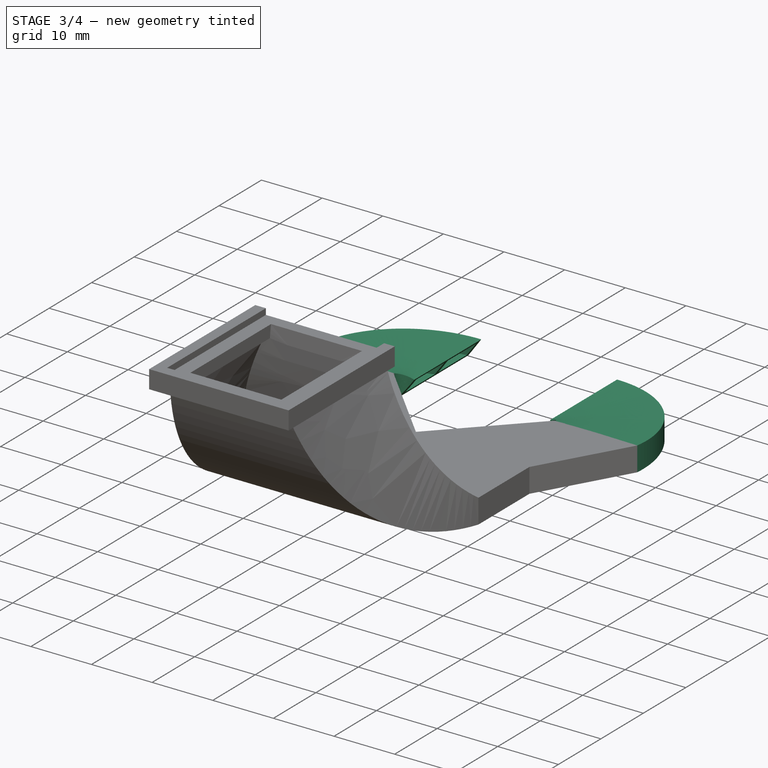
[diagram: stage 3 of 4 — iso view after this stage's code; geometry added in this stage tinted green]
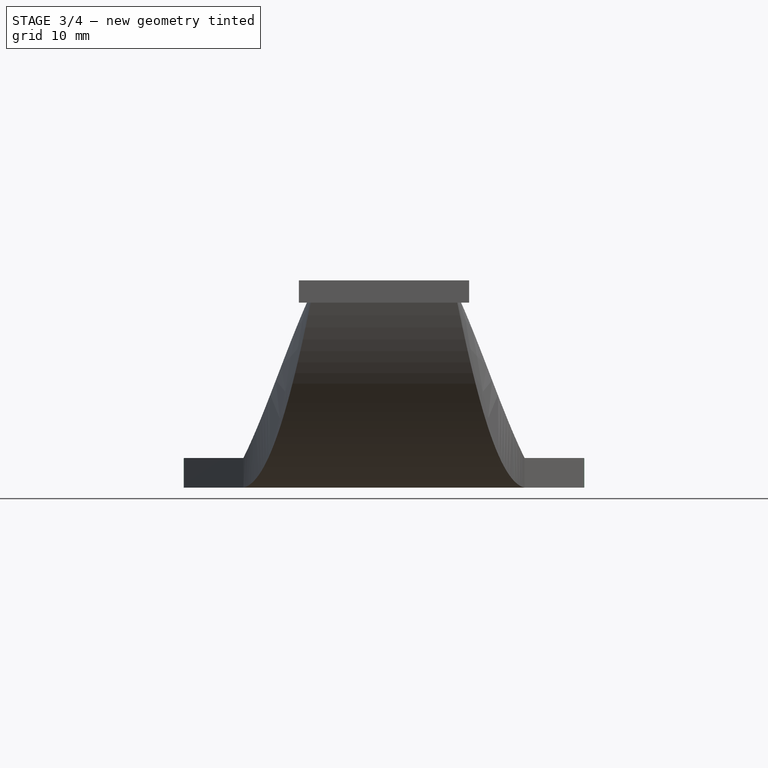
[diagram: stage 3 of 4 — front view after this stage's code; geometry added in this stage tinted green]
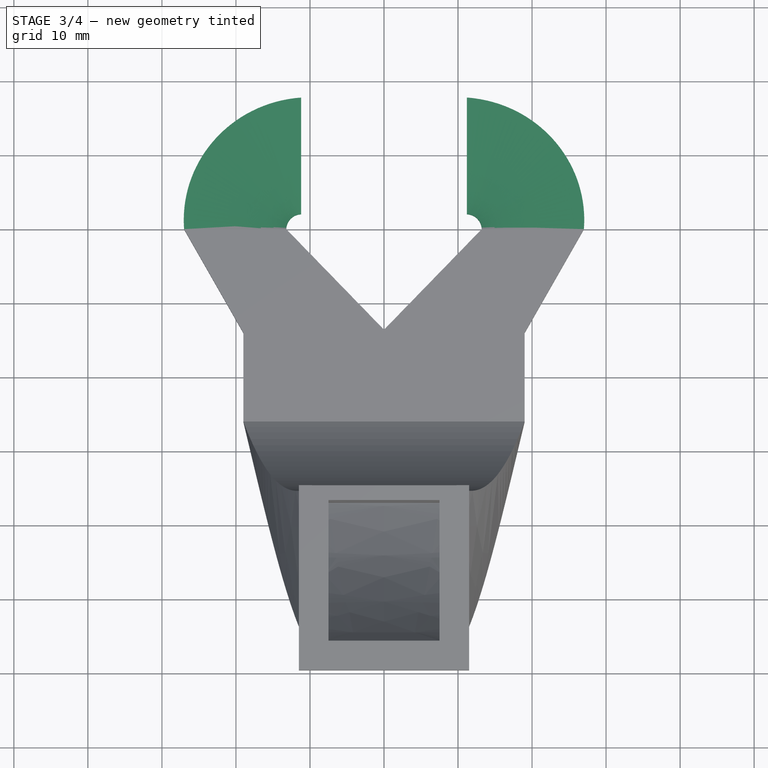
[diagram: stage 3 of 4 — top view after this stage's code; geometry added in this stage tinted green]
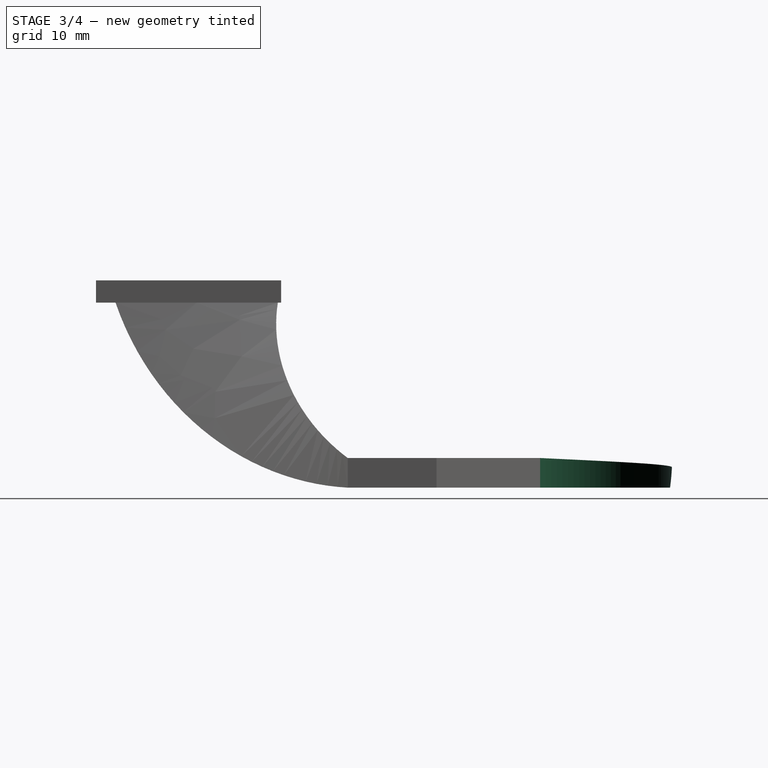
[diagram: stage 3 of 4 — right view after this stage's code; geometry added in this stage tinted green]
FEATURE [Sketcher::SketchObject] Sketch013  label="AirPipeSection4R_PathHelper"
  ExternalGeometry = -> [Sketch011]
  MapMode = 5
  Placement = pos=(0,0,-25) rot=(0,0,1;0rad)
  Support = -> [DatumPlane002]
  sketch-geometry (1):
    g0: LineSegment StartX=13.2 StartY=20 StartZ=0 EndX=13.2 EndY=30 EndZ=0
  constraints (3):
    c: Coincident(g0,g-3)
    c: Vertical(g0)
    c: Distance(g0) = 10
FEATURE [Sketcher::SketchObject] Sketch014  label="AirPipeSection4L_PathHelper"
  ExternalGeometry = -> [Sketch012]
  MapMode = 5
  Placement = pos=(0,0,-25) rot=(0,0,1;0rad)
  Support = -> [DatumPlane002]
  sketch-geometry (1):
    g0: LineSegment StartX=-13.2 StartY=20 StartZ=0 EndX=-13.2 EndY=30 EndZ=0
  constraints (3):
    c: Vertical(g0)
    c: Distance(g0) = 10
    c: Coincident(g0,g-3)
FEATURE [PartDesign::Plane] DatumPlane004  label="AirPipeSection4R_PathPlane"
  AttachmentOffset = pos=(0,0,0) rot=(-1,0,0;1.5708rad)
  Length = 66.9633
  MapMode = 7
  Placement = pos=(13.2,20,-25) rot=(0,0,1;0rad)
  ResizeMode = 0
  Support = -> [Sketch013]
  Width = 90.7633
FEATURE [PartDesign::Plane] DatumPlane005  label="AirPipeSection4L_PathPlane"
  AttachmentOffset = pos=(0,0,0) rot=(-1,0,0;1.5708rad)
  Length = 66.9633
  MapMode = 7
  Placement = pos=(-13.2,20,-25) rot=(0,0,1;0rad)
  ResizeMode = 0
  Support = -> [Sketch014]
  Width = 90.7633
FEATURE [Sketcher::SketchObject] Sketch015  label="AirPipeSection4R_Path"
  MapMode = 5
  Placement = pos=(13.2,20,-25) rot=(0,0,1;0rad)
  Support = -> [DatumPlane004]
  sketch-geometry (2):
    g0: ArcOfCircle CenterX=-2 CenterY=0 CenterZ=0 NormalX=0 NormalY=0 NormalZ=1 AngleXU=0 Radius=2 StartAngle=0 EndAngle=1.5708
    g1: LineSegment [constr] StartX=-2 StartY=0 StartZ=0 EndX=0 EndY=0 EndZ=0
  constraints (6):
    c: Coincident(g0,g-1)
    c: Coincident(g1,g0)
    c: Coincident(g1,g0)
    c: Horizontal(g1)
    c: Angle(g0) = 1.5708
    c: Radius(g0) = 2
FEATURE [Sketcher::SketchObject] Sketch016  label="AirPipeSection4L_Path"
  MapMode = 5
  Placement = pos=(-13.2,20,-25) rot=(0,0,1;0rad)
  Support = -> [DatumPlane005]
  sketch-geometry (2):
    g0: ArcOfCircle CenterX=2 CenterY=2e-16 CenterZ=0 NormalX=0 NormalY=0 NormalZ=1 AngleXU=0 Radius=2 StartAngle=1.5708 EndAngle=3.14159
    g1: LineSegment [constr] StartX=0 StartY=2e-16 StartZ=0 EndX=2 EndY=2e-16 EndZ=0
  constraints (6):
    c: Coincident(g0,g-1)
    c: Coincident(g1,g0)
    c: Coincident(g1,g0)
    c: Horizontal(g1)
    c: Angle(g0) = 1.5708
    c: Radius(g0) = 2
FEATURE [PartDesign::Plane] DatumPlane007  label="AirPipeNoseREndPlane"
  Length = 88.5305
  MapMode = 7
  Placement = pos=(11.2,22,-25) rot=(0.57735,0.57735,0.57735;2.0944rad)
  ResizeMode = 0
  Support = -> [Sketch015]
  Width = 47.7305
FEATURE [PartDesign::Plane] DatumPlane008  label="AirPipeNoseLEndPlane"
  Length = 88.5305
  MapMode = 7
  Placement = pos=(-11.2,22,-25) rot=(0.57735,0.57735,0.57735;2.0944rad)
  ResizeMode = 0
  Support = -> [Sketch016]
  Width = 47.7305
FEATURE [Sketcher::SketchObject] Sketch019  label="AirPipeNoseREndSketch"
  MapMode = 5
  Placement = pos=(11.2,22,-25) rot=(0.57735,0.57735,0.57735;2.0944rad)
  Support = -> [DatumPlane007]
  sketch-geometry (15):
    g0: LineSegment StartX=0 StartY=0.8 StartZ=0 EndX=15.8 EndY=0.8 EndZ=0
    g1: LineSegment StartX=15.8 StartY=0.8 StartZ=0 EndX=15.8 EndY=-2 EndZ=0
    g2: LineSegment StartX=15.8 StartY=-2 StartZ=0 EndX=0 EndY=-2 EndZ=0
    g3: LineSegment StartX=0 StartY=-2 StartZ=0 EndX=0 EndY=0.8 EndZ=0
    g4: LineSegment StartX=15 StartY=0.4 StartZ=0 EndX=8.3 EndY=0.4 EndZ=0
    g5: LineSegment StartX=8.3 StartY=0.4 StartZ=0 EndX=8.3 EndY=-1.6 EndZ=0
    g6: LineSegment StartX=8.3 StartY=-1.6 StartZ=0 EndX=15 EndY=-1.6 EndZ=0
    g7: LineSegment StartX=15 StartY=-1.6 StartZ=0 EndX=15 EndY=0.4 EndZ=0
    g8: LineSegment StartX=0.8 StartY=0.4 StartZ=0 EndX=7.5 EndY=0.4 EndZ=0
    g9: LineSegment StartX=7.5 StartY=0.4 StartZ=0 EndX=7.5 EndY=-1.6 EndZ=0
    g10: LineSegment StartX=7.5 StartY=-1.6 StartZ=0 EndX=0.8 EndY=-1.6 EndZ=0
    g11: LineSegment StartX=0.8 StartY=-1.6 StartZ=0 EndX=0.8 EndY=0.4 EndZ=0
    g12: LineSegment [constr] StartX=7.5 StartY=0.4 StartZ=0 EndX=8.3 EndY=0.4 EndZ=0
    g13: LineSegment [constr] StartX=15 StartY=0.4 StartZ=0 EndX=15.8 EndY=0.4 EndZ=0
    g14: LineSegment [constr] StartX=0.8 StartY=0.4 StartZ=0 EndX=0 EndY=0.4 EndZ=0
  constraints (44):
    c: Coincident(g0,g1)
    c: Coincident(g1,g2)
    c: Coincident(g2,g3)
    c: Coincident(g3,g0)
    c: Horizontal(g0)
    c: Horizontal(g2)
    c: Vertical(g3)
    c: Coincident(g4,g5)
    c: Coincident(g5,g6)
    c: Coincident(g6,g7)
    c: Coincident(g7,g4)
    c: Horizontal(g4)
    c: Horizontal(g6)
    c: Vertical(g5)
    c: Vertical(g7)
    c: Coincident(g8,g9)
    c: Coincident(g9,g10)
    c: Coincident(g10,g11)
    c: Coincident(g11,g8)
    c: Horizontal(g8)
    c: Horizontal(g10)
    c: Vertical(g9)
    c: Coincident(g12,g8)
    c: Coincident(g12,g4)
    c: Coincident(g13,g4)
    c: PointOnObject(g13,g1)
    c: Horizontal(g13)
    c: Coincident(g14,g8)
    c: PointOnObject(g14,g3)
    c: Horizontal(g14)
    c: Horizontal(g12)
    c: Distance(g13) = 0.8
    c: Distance(g12) = 0.8
    c: Equal(g11,g5)
    c: Equal(g14,g13)
    c: Equal(g8,g4)
    c: PointOnObject(g-1,g3)
    c: Vertical(g1)
    c: DistanceY(g-1,g2) = -2
    c: Distance(g3) = 2.8
    c: Vertical(g11)
    c: Distance(g8,g0) = 0.4
    c: Distance(g10,g2) = 0.4
    c: Distance(g4,g3) = 15
FEATURE [PartDesign::AdditivePipe] AdditivePipe004  label="AirPipeSection4R"
  AuxilleryCurvelinear = true
  AuxillerySpineTangent = false
  BaseFeature = -> AdditivePipe003
  Binormal = (0,0,1)
  Mode = 4
  Profile = -> Sketch011
  Sections = -> [Sketch019]
  Spine = -> Sketch015 [Edge1]
  SpineTangent = false
  Transformation = 1
  Transition = 0
FEATURE [Sketcher::SketchObject] Sketch020  label="AirPipeNoseLEndSketch"
  MapMode = 5
  Placement = pos=(-11.2,22,-25) rot=(0.57735,0.57735,0.57735;2.0944rad)
  Support = -> [DatumPlane008]
  sketch-geometry (15):
    g0: LineSegment StartX=0 StartY=0.8 StartZ=0 EndX=15.8 EndY=0.8 EndZ=0
    g1: LineSegment StartX=15.8 StartY=0.8 StartZ=0 EndX=15.8 EndY=-2 EndZ=0
    g2: LineSegment StartX=15.8 StartY=-2 StartZ=0 EndX=0 EndY=-2 EndZ=0
    g3: LineSegment StartX=0 StartY=-2 StartZ=0 EndX=0 EndY=0.8 EndZ=0
    g4: LineSegment StartX=7.5 StartY=0.4 StartZ=0 EndX=0.8 EndY=0.4 EndZ=0
    g5: LineSegment StartX=0.8 StartY=0.4 StartZ=0 EndX=0.8 EndY=-1.6 EndZ=0
    g6: LineSegment StartX=0.8 StartY=-1.6 StartZ=0 EndX=7.5 EndY=-1.6 EndZ=0
    g7: LineSegment StartX=7.5 StartY=-1.6 StartZ=0 EndX=7.5 EndY=0.4 EndZ=0
    g8: LineSegment StartX=8.3 StartY=0.4 StartZ=0 EndX=15 EndY=0.4 EndZ=0
    g9: LineSegment StartX=15 StartY=0.4 StartZ=0 EndX=15 EndY=-1.6 EndZ=0
    g10: LineSegment StartX=15 StartY=-1.6 StartZ=0 EndX=8.3 EndY=-1.6 EndZ=0
    g11: LineSegment StartX=8.3 StartY=-1.6 StartZ=0 EndX=8.3 EndY=0.4 EndZ=0
    g12: LineSegment [constr] StartX=8.3 StartY=0.4 StartZ=0 EndX=7.5 EndY=0.4 EndZ=0
    g13: LineSegment [constr] StartX=0.8 StartY=0.4 StartZ=0 EndX=0 EndY=0.4 EndZ=0
    g14: LineSegment [constr] StartX=15 StartY=0.4 StartZ=0 EndX=15.8 EndY=0.4 EndZ=0
  constraints (44):
    c: Coincident(g0,g1)
    c: Coincident(g1,g2)
    c: Coincident(g2,g3)
    c: Coincident(g3,g0)
    c: Horizontal(g0)
    c: Horizontal(g2)
    c: Vertical(g3)
    c: Coincident(g4,g5)
    c: Coincident(g5,g6)
    c: Coincident(g6,g7)
    c: Coincident(g7,g4)
    c: Horizontal(g4)
    c: Horizontal(g6)
    c: Vertical(g5)
    c: Vertical(g7)
    c: Coincident(g8,g9)
    c: Coincident(g9,g10)
    c: Coincident(g10,g11)
    c: Coincident(g11,g8)
    c: Horizontal(g8)
    c: Horizontal(g10)
    c: Vertical(g9)
    c: Equal(g11,g5)
    c: Distance(g11) = 2
    c: Equal(g4,g8)
    c: PointOnObject(g-1,g3)
    c: Distance(g8,g3) = 15
    c: Coincident(g12,g8)
    c: Coincident(g12,g4)
    c: Horizontal(g12)
    c: Distance(g12) = 0.8
    c: Coincident(g13,g4)
    c: Horizontal(g13)
    c: PointOnObject(g13,g3)
    c: Coincident(g14,g8)
    c: PointOnObject(g14,g1)
    c: Horizontal(g14)
    c: Equal(g14,g13)
    c: Distance(g13) = 0.8
    c: Vertical(g1)
    c: DistanceY(g-1,g2) = -2
    c: Distance(g3) = 2.8
    c: Distance(g4,g0) = 0.4
    c: Vertical(g11)
FEATURE [PartDesign::AdditivePipe] AdditivePipe005  label="AirPipeSection4L"
  AuxilleryCurvelinear = true
  AuxillerySpineTangent = false
  BaseFeature = -> AdditivePipe004
  Binormal = (0,0,1)
  Mode = 4
  Profile = -> Sketch012
  Sections = -> [Sketch020]
  Spine = -> Sketch016 [Edge1]
  SpineTangent = false
  Transformation = 1
  Transition = 0
FEATURE [Sketcher::SketchObject] Sketch021  label="AirPipeNoseCutSketch"
  ExternalGeometry = -> [Sketch020,Sketch019]
  MapMode = 5
  Placement = pos=(0,20,-25) rot=(1,0,0;1.5708rad)
  Support = -> [DatumPlane003]
  sketch-geometry (5):
    g0: LineSegment StartX=-11.2 StartY=0.8 StartZ=0 EndX=0 EndY=16.7953 EndZ=0
    g1: LineSegment StartX=0 StartY=16.7953 StartZ=0 EndX=11.2 EndY=0.8 EndZ=0
    g2: LineSegment StartX=11.2 StartY=0.8 StartZ=0 EndX=22.4 EndY=-15.1953 EndZ=0
    g3: LineSegment StartX=-11.2 StartY=0.8 StartZ=0 EndX=-22.4 EndY=-15.1953 EndZ=0
    g4: LineSegment StartX=-22.4 StartY=-15.1953 StartZ=0 EndX=22.4 EndY=-15.1953 EndZ=0
  constraints (13):
    c: Coincident(g0,g-3)
    c: PointOnObject(g0,g-2)
    c: Coincident(g1,g0)
    c: Coincident(g1,g-4)
    c: Coincident(g2,g1)
    c: Coincident(g3,g0)
    c: Coincident(g4,g3)
    c: Coincident(g4,g2)
    c: Horizontal(g4)
    c: Parallel(g0,g3)
    c: Parallel(g1,g2)
    c: Equal(g0,g3)
    c: Angle(g0,g1) = 1.22173
FEATURE [PartDesign::Pocket] Pocket  label="AirPipeNoseCutPocket"
  BaseFeature = -> AdditivePipe005
  Length = 5
  Length2 = 100
  Profile = -> Sketch021
  Type = 1
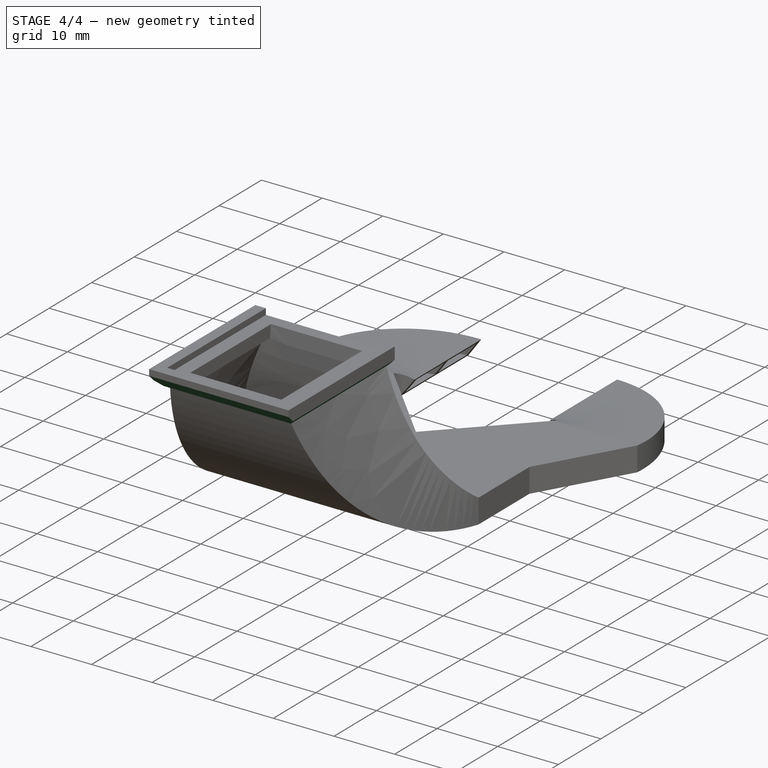
[diagram: stage 4 of 4 — iso view after this stage's code; geometry added in this stage tinted green]
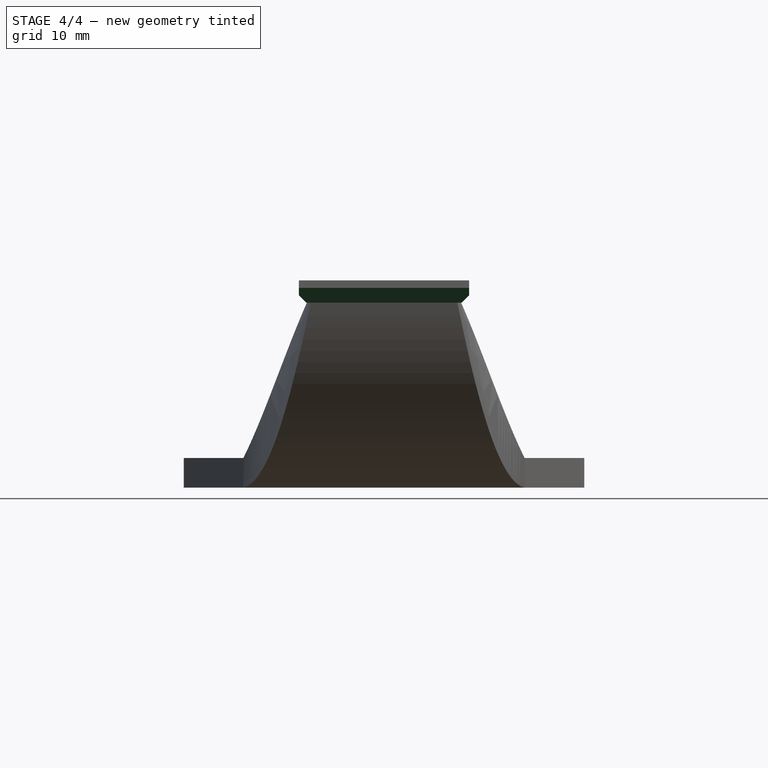
[diagram: stage 4 of 4 — front view after this stage's code; geometry added in this stage tinted green]
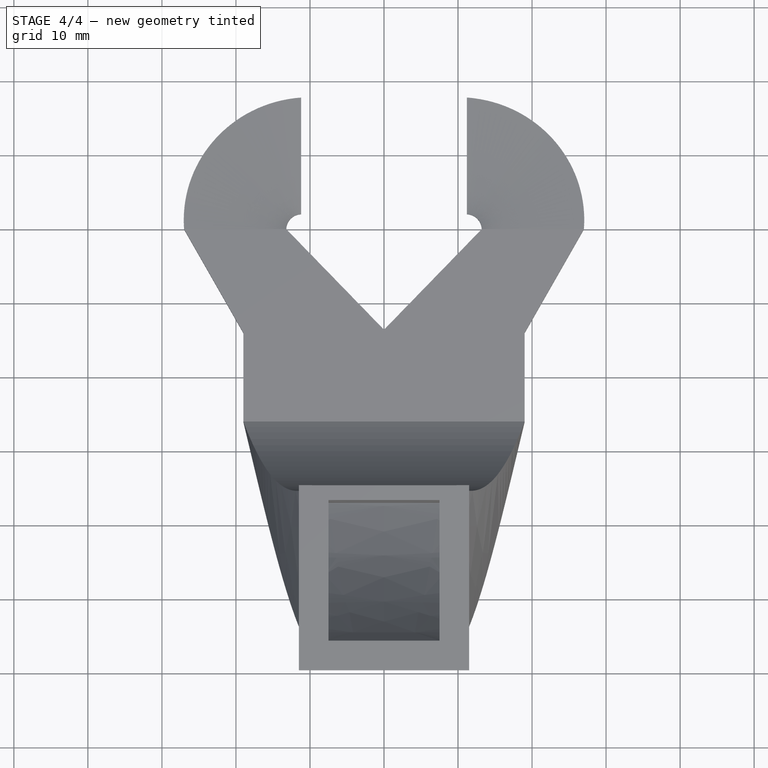
[diagram: stage 4 of 4 — top view after this stage's code; geometry added in this stage tinted green]
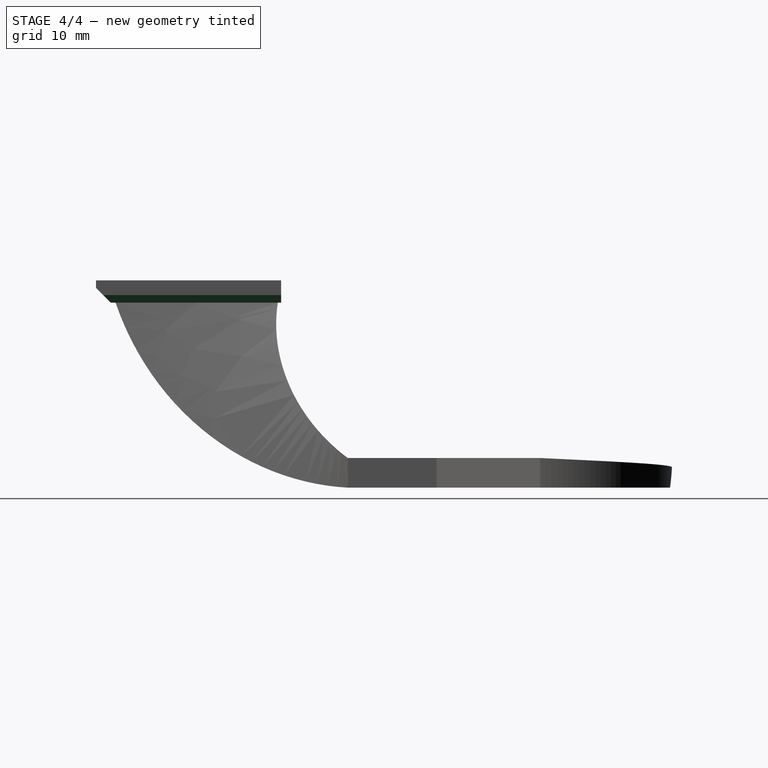
[diagram: stage 4 of 4 — right view after this stage's code; geometry added in this stage tinted green]
FEATURE [PartDesign::Chamfer] Chamfer  label="TopCornersChamfer1"
  Base = -> Pocket [Edge14,Edge11]
  BaseFeature = -> Pocket
  Size = 1
FEATURE [PartDesign::Chamfer] Chamfer001  label="TopCornersChamfer2"
  Base = -> Chamfer [Edge20]
  BaseFeature = -> Chamfer
  Size = 1.99
FEATURE [PartDesign::Body] Body  label="PipeBody"
  Group = -> [Sketch,Pad,Sketch001,Pad001,Sketch003,Sketch004,DatumPlane,Sketch005,AdditivePipe,DatumPlane001,Sketch006,Sketch007,AdditivePipe001,DatumPlane002,Sketch008,Sketch009,Sketch010,DatumPlane003,Sketch011,Sketch012,AdditivePipe002,AdditivePipe003,Sketch013,Sketch014,DatumPlane004,DatumPlane005,Sketch015,Sketch016,AdditivePipe004,AdditivePipe005,DatumPlane007,DatumPlane008,Sketch019,Sketch020,Sketch021,+3 more]
  Origin = -> Origin001
  Tip = -> Chamfer001
FEATURE [Part::FeaturePython] refine  label="PipeBody_Refined"  # WARN: FeaturePython — macro-defined, semantics opaque (R4)
  Base = -> Body
FEATURE [App::Part] Part  label="PipePart"
  Group = -> [Body,refine]
  License = CC BY 3.0
  LicenseURL = http://creativecommons.org/licenses/by/3.0/
  Origin = -> Origin
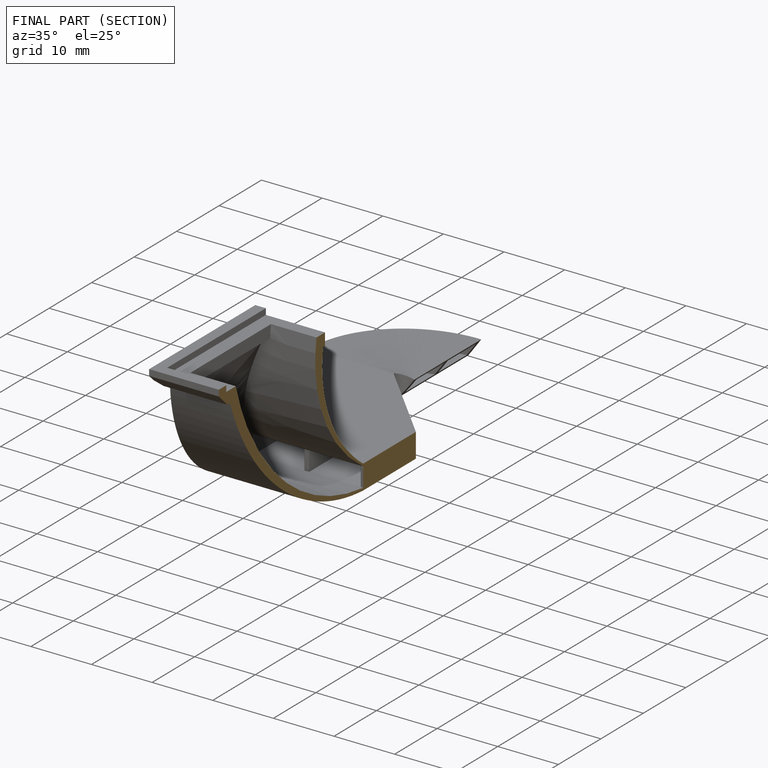
[diagram: finished part — half-section view (interior)]
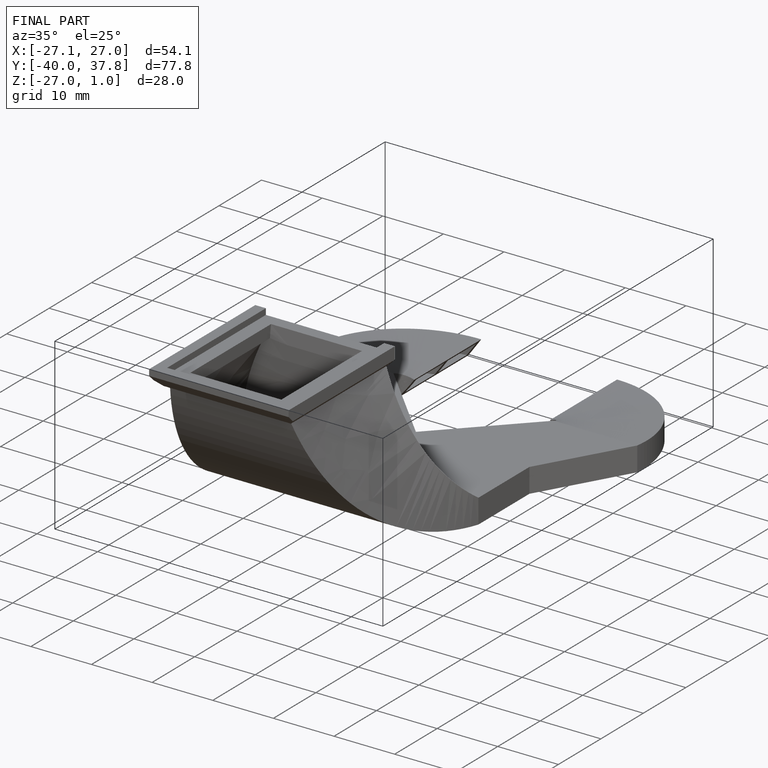
[diagram: finished part — iso view with bounding-box wireframe]
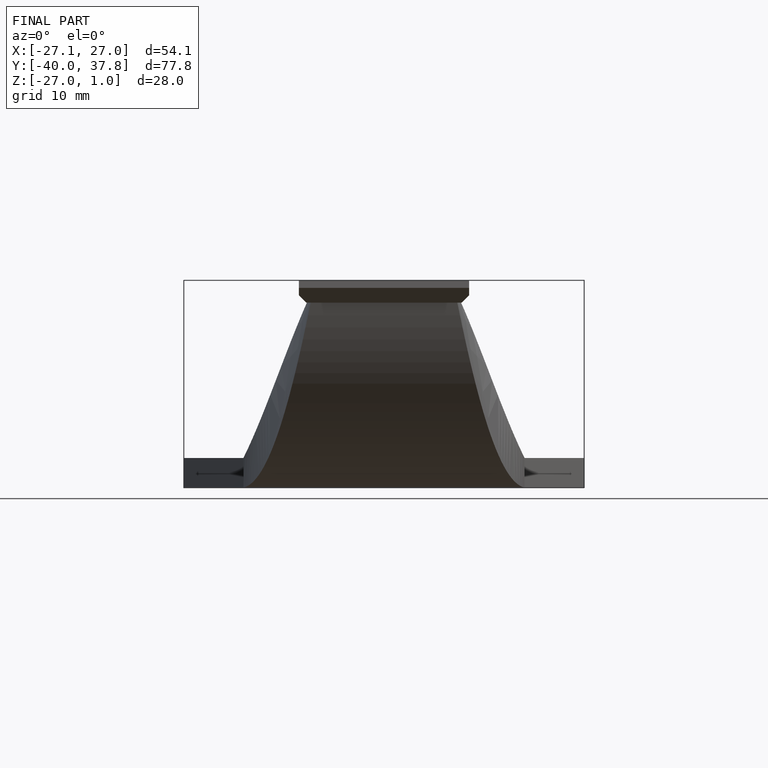
[diagram: finished part — front view with bounding-box wireframe]
